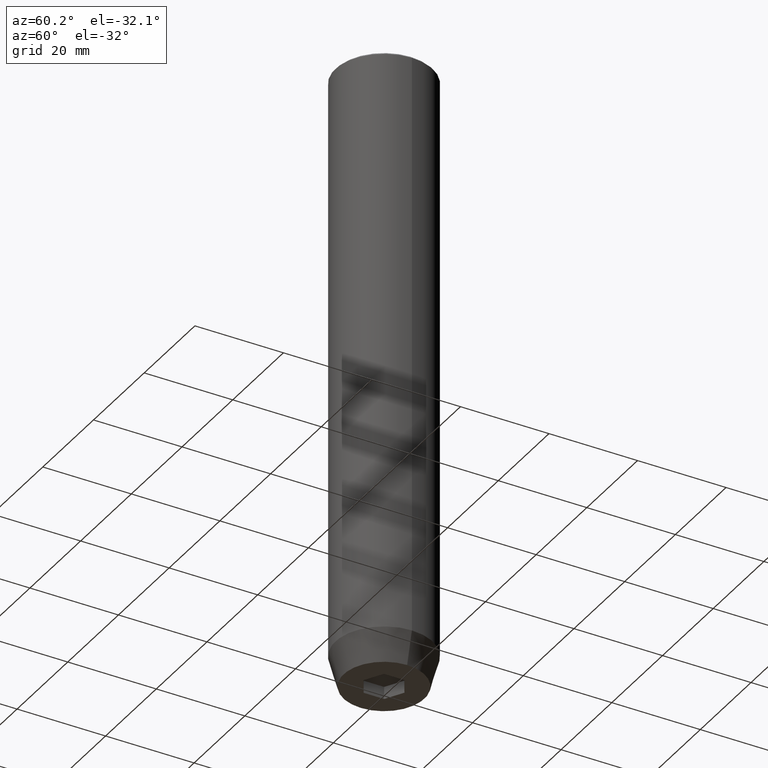
[diagram: clean part render]
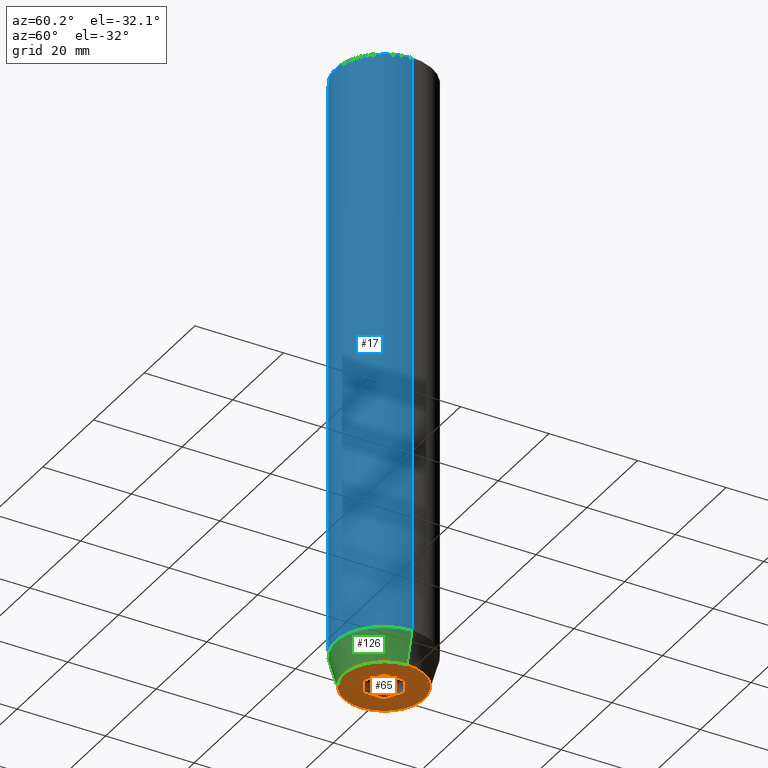
[diagram: same view with three faces highlighted in distinct colors, each labeled with its STEP entity id]
A machine part, auxiliary view with three faces highlighted in distinct colors.
Their STEP definitions:

[orange] entity #65 — the highlighted planar face has unit normal (0, 0, -1).
#5 = DIRECTION ( 'NONE',  ( -0.000000000000000000, -0.000000000000000000, 1.000000000000000000 ) ) ;
#7 = LINE ( 'NONE', #325, #34 ) ;
#12 = CARTESIAN_POINT ( 'NONE',  ( -4.000000000000000000, 2.309401076758503368, -140.0000000000000000 ) ) ;
#34 = VECTOR ( 'NONE', #508, 1000.000000000000000 ) ;
#36 = CARTESIAN_POINT ( 'NONE',  ( 4.336808689942017736E-16, -4.618802153517006737, -140.0000000000000000 ) ) ;
#65 = ADVANCED_FACE ( 'NONE', ( #344, #353 ), #536, .T. ) ;
#72 = AXIS2_PLACEMENT_3D ( 'NONE', #144, #525, #160 ) ;
#74 = VERTEX_POINT ( 'NONE', #394 ) ;
#80 = EDGE_CURVE ( 'NONE', #485, #447, #339, .T. ) ;
#98 = CARTESIAN_POINT ( 'NONE',  ( -9.124355652982133691, 1.232261386766375507E-15, -140.0000000000000000 ) ) ;
#108 = CARTESIAN_POINT ( 'NONE',  ( -2.000000000000000000, 3.464101615137754830, -140.0000000000000000 ) ) ;
#122 = EDGE_LOOP ( 'NONE', ( #214, #391 ) ) ;
#136 = CARTESIAN_POINT ( 'NONE',  ( 2.168404344971008868E-16, 4.618802153517006737, -140.0000000000000000 ) ) ;
#144 = CARTESIAN_POINT ( 'NONE',  ( 0.000000000000000000, 9.124355652982133691, -140.0000000000000000 ) ) ;
#160 = DIRECTION ( 'NONE',  ( -1.000000000000000000, 0.000000000000000000, -0.000000000000000000 ) ) ;
#163 = VECTOR ( 'NONE', #468, 1000.000000000000000 ) ;
#167 = ORIENTED_EDGE ( 'NONE', *, *, #307, .F. ) ;
#170 = AXIS2_PLACEMENT_3D ( 'NONE', #358, #542, #498 ) ;
#184 = CARTESIAN_POINT ( 'NONE',  ( -2.000000000000000888, -3.464101615137754386, -140.0000000000000000 ) ) ;
#186 = EDGE_CURVE ( 'NONE', #447, #296, #337, .T. ) ;
#193 = DIRECTION ( 'NONE',  ( 0.8660254037844385966, -0.5000000000000001110, 0.000000000000000000 ) ) ;
#204 = CIRCLE ( 'NONE', #170, 9.124355652982133691 ) ;
#211 = ORIENTED_EDGE ( 'NONE', *, *, #186, .F. ) ;
#214 = ORIENTED_EDGE ( 'NONE', *, *, #327, .F. ) ;
#217 = ORIENTED_EDGE ( 'NONE', *, *, #555, .F. ) ;
#221 = VECTOR ( 'NONE', #576, 999.9999999999998863 ) ;
#226 = DIRECTION ( 'NONE',  ( 1.000000000000000000, 0.000000000000000000, 0.000000000000000000 ) ) ;
#230 = CARTESIAN_POINT ( 'NONE',  ( -4.000000000000000000, -2.309401076758503368, -140.0000000000000000 ) ) ;
#264 = LINE ( 'NONE', #184, #560 ) ;
#270 = CARTESIAN_POINT ( 'NONE',  ( 4.000000000000000000, 2.309401076758503368, -140.0000000000000000 ) ) ;
#276 = LINE ( 'NONE', #423, #491 ) ;
#288 = EDGE_CURVE ( 'NONE', #74, #354, #276, .T. ) ;
#291 = VERTEX_POINT ( 'NONE', #230 ) ;
#296 = VERTEX_POINT ( 'NONE', #270 ) ;
#307 = EDGE_CURVE ( 'NONE', #354, #291, #264, .T. ) ;
#323 = DIRECTION ( 'NONE',  ( -0.8660254037844384856, -0.5000000000000002220, 0.000000000000000000 ) ) ;
#325 = CARTESIAN_POINT ( 'NONE',  ( -4.000000000000000000, 0.000000000000000000, -140.0000000000000000 ) ) ;
#327 = EDGE_CURVE ( 'NONE', #539, #489, #524, .T. ) ;
#337 = LINE ( 'NONE', #523, #553 ) ;
#339 = LINE ( 'NONE', #108, #221 ) ;
#344 = FACE_BOUND ( 'NONE', #585, .T. ) ;
#353 = FACE_OUTER_BOUND ( 'NONE', #122, .T. ) ;
#354 = VERTEX_POINT ( 'NONE', #36 ) ;
#357 = ORIENTED_EDGE ( 'NONE', *, *, #467, .F. ) ;
#358 = CARTESIAN_POINT ( 'NONE',  ( 0.000000000000000000, 0.000000000000000000, -140.0000000000000000 ) ) ;
#372 = LINE ( 'NONE', #378, #163 ) ;
#373 = EDGE_CURVE ( 'NONE', #489, #539, #204, .T. ) ;
#374 = ORIENTED_EDGE ( 'NONE', *, *, #288, .F. ) ;
#378 = CARTESIAN_POINT ( 'NONE',  ( 4.000000000000000000, 0.000000000000000000, -140.0000000000000000 ) ) ;
#391 = ORIENTED_EDGE ( 'NONE', *, *, #373, .F. ) ;
#394 = CARTESIAN_POINT ( 'NONE',  ( 4.000000000000000000, -2.309401076758502480, -140.0000000000000000 ) ) ;
#423 = CARTESIAN_POINT ( 'NONE',  ( 2.000000000000000888, -3.464101615137754386, -140.0000000000000000 ) ) ;
#447 = VERTEX_POINT ( 'NONE', #136 ) ;
#467 = EDGE_CURVE ( 'NONE', #296, #74, #372, .T. ) ;
#468 = DIRECTION ( 'NONE',  ( 0.000000000000000000, -1.000000000000000000, 0.000000000000000000 ) ) ;
#470 = CARTESIAN_POINT ( 'NONE',  ( 0.000000000000000000, 0.000000000000000000, -140.0000000000000000 ) ) ;
#485 = VERTEX_POINT ( 'NONE', #12 ) ;
#489 = VERTEX_POINT ( 'NONE', #98 ) ;
#491 = VECTOR ( 'NONE', #323, 1000.000000000000114 ) ;
#498 = DIRECTION ( 'NONE',  ( 1.000000000000000000, 0.000000000000000000, 0.000000000000000000 ) ) ;
#502 = ORIENTED_EDGE ( 'NONE', *, *, #80, .F. ) ;
#504 = CARTESIAN_POINT ( 'NONE',  ( 9.124355652982133691, 0.000000000000000000, -140.0000000000000000 ) ) ;
#508 = DIRECTION ( 'NONE',  ( 0.000000000000000000, 1.000000000000000000, 0.000000000000000000 ) ) ;
#515 = DIRECTION ( 'NONE',  ( -0.8660254037844384856, 0.5000000000000002220, 0.000000000000000000 ) ) ;
#516 = AXIS2_PLACEMENT_3D ( 'NONE', #470, #5, #226 ) ;
#523 = CARTESIAN_POINT ( 'NONE',  ( 2.000000000000000444, 3.464101615137754386, -140.0000000000000000 ) ) ;
#524 = CIRCLE ( 'NONE', #516, 9.124355652982133691 ) ;
#525 = DIRECTION ( 'NONE',  ( 0.000000000000000000, 0.000000000000000000, -1.000000000000000000 ) ) ;
#536 = PLANE ( 'NONE',  #72 ) ;
#539 = VERTEX_POINT ( 'NONE', #504 ) ;
#542 = DIRECTION ( 'NONE',  ( -0.000000000000000000, -0.000000000000000000, 1.000000000000000000 ) ) ;
#553 = VECTOR ( 'NONE', #193, 1000.000000000000000 ) ;
#555 = EDGE_CURVE ( 'NONE', #291, #485, #7, .T. ) ;
#560 = VECTOR ( 'NONE', #515, 1000.000000000000114 ) ;
#576 = DIRECTION ( 'NONE',  ( 0.8660254037844387076, 0.5000000000000001110, 0.000000000000000000 ) ) ;
#585 = EDGE_LOOP ( 'NONE', ( #502, #217, #167, #374, #357, #211 ) ) ;

[blue] entity #17 — the highlighted cylindrical surface (partial cylindrical patch) has radius 11 mm, axis along (-0, -0, 1).
#2 = CARTESIAN_POINT ( 'NONE',  ( 11.00000000000000000, 0.000000000000000000, -0.5000000000000004441 ) ) ;
#9 = ORIENTED_EDGE ( 'NONE', *, *, #87, .F. ) ;
#14 = VERTEX_POINT ( 'NONE', #2 ) ;
#17 = ADVANCED_FACE ( 'NONE', ( #225 ), #418, .T. ) ;
#29 = ORIENTED_EDGE ( 'NONE', *, *, #260, .T. ) ;
#32 = AXIS2_PLACEMENT_3D ( 'NONE', #90, #236, #429 ) ;
#38 = EDGE_CURVE ( 'NONE', #162, #14, #412, .T. ) ;
#79 = AXIS2_PLACEMENT_3D ( 'NONE', #500, #406, #258 ) ;
#87 = EDGE_CURVE ( 'NONE', #497, #271, #343, .T. ) ;
#90 = CARTESIAN_POINT ( 'NONE',  ( 0.000000000000000000, 0.000000000000000000, -133.0000000000000000 ) ) ;
#111 = DIRECTION ( 'NONE',  ( -0.000000000000000000, -0.000000000000000000, 1.000000000000000000 ) ) ;
#147 = CARTESIAN_POINT ( 'NONE',  ( 11.00000000000000000, 0.000000000000000000, -133.0000000000000000 ) ) ;
#159 = CARTESIAN_POINT ( 'NONE',  ( -11.00000000000000000, 1.347111479062088405E-15, -133.0000000000000000 ) ) ;
#162 = VERTEX_POINT ( 'NONE', #147 ) ;
#172 = DIRECTION ( 'NONE',  ( -0.000000000000000000, -0.000000000000000000, 1.000000000000000000 ) ) ;
#177 = CARTESIAN_POINT ( 'NONE',  ( 0.000000000000000000, 0.000000000000000000, -0.5000000000000004441 ) ) ;
#185 = ORIENTED_EDGE ( 'NONE', *, *, #479, .T. ) ;
#194 = VECTOR ( 'NONE', #111, 1000.000000000000000 ) ;
#224 = CARTESIAN_POINT ( 'NONE',  ( -11.00000000000000000, 1.347111479062088405E-15, -0.5000000000000004441 ) ) ;
#225 = FACE_OUTER_BOUND ( 'NONE', #254, .T. ) ;
#236 = DIRECTION ( 'NONE',  ( -0.000000000000000000, -0.000000000000000000, 1.000000000000000000 ) ) ;
#252 = ORIENTED_EDGE ( 'NONE', *, *, #38, .T. ) ;
#254 = EDGE_LOOP ( 'NONE', ( #9, #29, #252, #185 ) ) ;
#258 = DIRECTION ( 'NONE',  ( 1.000000000000000000, 0.000000000000000000, 0.000000000000000000 ) ) ;
#260 = EDGE_CURVE ( 'NONE', #497, #162, #450, .T. ) ;
#271 = VERTEX_POINT ( 'NONE', #224 ) ;
#324 = DIRECTION ( 'NONE',  ( 1.000000000000000000, 0.000000000000000000, 0.000000000000000000 ) ) ;
#343 = LINE ( 'NONE', #385, #194 ) ;
#348 = VECTOR ( 'NONE', #172, 1000.000000000000000 ) ;
#385 = CARTESIAN_POINT ( 'NONE',  ( -11.00000000000000000, 1.347111479062088405E-15, 0.000000000000000000 ) ) ;
#406 = DIRECTION ( 'NONE',  ( -0.000000000000000000, -0.000000000000000000, 1.000000000000000000 ) ) ;
#412 = LINE ( 'NONE', #586, #348 ) ;
#418 = CYLINDRICAL_SURFACE ( 'NONE', #79, 11.00000000000000000 ) ;
#424 = DIRECTION ( 'NONE',  ( 0.000000000000000000, 0.000000000000000000, -1.000000000000000000 ) ) ;
#429 = DIRECTION ( 'NONE',  ( 1.000000000000000000, 0.000000000000000000, 0.000000000000000000 ) ) ;
#450 = CIRCLE ( 'NONE', #32, 11.00000000000000000 ) ;
#479 = EDGE_CURVE ( 'NONE', #14, #271, #509, .T. ) ;
#497 = VERTEX_POINT ( 'NONE', #159 ) ;
#500 = CARTESIAN_POINT ( 'NONE',  ( 0.000000000000000000, 0.000000000000000000, 0.000000000000000000 ) ) ;
#509 = CIRCLE ( 'NONE', #528, 11.00000000000000000 ) ;
#528 = AXIS2_PLACEMENT_3D ( 'NONE', #177, #424, #324 ) ;
#586 = CARTESIAN_POINT ( 'NONE',  ( 11.00000000000000000, 0.000000000000000000, 0.000000000000000000 ) ) ;

[green] entity #126 — the highlighted conical surface has half-angle 15 deg.
#15 = CARTESIAN_POINT ( 'NONE',  ( 11.00000000000000000, 0.000000000000000000, -133.0000000000000000 ) ) ;
#32 = AXIS2_PLACEMENT_3D ( 'NONE', #90, #236, #429 ) ;
#44 = EDGE_CURVE ( 'NONE', #539, #162, #471, .T. ) ;
#52 = AXIS2_PLACEMENT_3D ( 'NONE', #169, #534, #443 ) ;
#60 = CARTESIAN_POINT ( 'NONE',  ( -11.00000000000000000, 1.347111479062088405E-15, -133.0000000000000000 ) ) ;
#90 = CARTESIAN_POINT ( 'NONE',  ( 0.000000000000000000, 0.000000000000000000, -133.0000000000000000 ) ) ;
#98 = CARTESIAN_POINT ( 'NONE',  ( -9.124355652982133691, 1.232261386766375507E-15, -140.0000000000000000 ) ) ;
#103 = ORIENTED_EDGE ( 'NONE', *, *, #44, .T. ) ;
#126 = ADVANCED_FACE ( 'NONE', ( #356 ), #263, .T. ) ;
#147 = CARTESIAN_POINT ( 'NONE',  ( 11.00000000000000000, 0.000000000000000000, -133.0000000000000000 ) ) ;
#159 = CARTESIAN_POINT ( 'NONE',  ( -11.00000000000000000, 1.347111479062088405E-15, -133.0000000000000000 ) ) ;
#162 = VERTEX_POINT ( 'NONE', #147 ) ;
#169 = CARTESIAN_POINT ( 'NONE',  ( 0.000000000000000000, 0.000000000000000000, -133.0000000000000000 ) ) ;
#170 = AXIS2_PLACEMENT_3D ( 'NONE', #358, #542, #498 ) ;
#191 = DIRECTION ( 'NONE',  ( 0.2588190451025213501, 0.000000000000000000, 0.9659258262890680902 ) ) ;
#204 = CIRCLE ( 'NONE', #170, 9.124355652982133691 ) ;
#236 = DIRECTION ( 'NONE',  ( -0.000000000000000000, -0.000000000000000000, 1.000000000000000000 ) ) ;
#237 = DIRECTION ( 'NONE',  ( -0.2588190451025213501, 3.169619151431772337E-17, 0.9659258262890680902 ) ) ;
#238 = EDGE_CURVE ( 'NONE', #489, #497, #475, .T. ) ;
#260 = EDGE_CURVE ( 'NONE', #497, #162, #450, .T. ) ;
#263 = CONICAL_SURFACE ( 'NONE', #52, 11.00000000000000000, 0.2617993877991500740 ) ;
#303 = EDGE_LOOP ( 'NONE', ( #541, #414, #103, #546 ) ) ;
#356 = FACE_OUTER_BOUND ( 'NONE', #303, .T. ) ;
#358 = CARTESIAN_POINT ( 'NONE',  ( 0.000000000000000000, 0.000000000000000000, -140.0000000000000000 ) ) ;
#373 = EDGE_CURVE ( 'NONE', #489, #539, #204, .T. ) ;
#410 = VECTOR ( 'NONE', #191, 1000.000000000000000 ) ;
#414 = ORIENTED_EDGE ( 'NONE', *, *, #373, .T. ) ;
#429 = DIRECTION ( 'NONE',  ( 1.000000000000000000, 0.000000000000000000, 0.000000000000000000 ) ) ;
#443 = DIRECTION ( 'NONE',  ( 1.000000000000000000, 0.000000000000000000, 0.000000000000000000 ) ) ;
#450 = CIRCLE ( 'NONE', #32, 11.00000000000000000 ) ;
#471 = LINE ( 'NONE', #15, #410 ) ;
#475 = LINE ( 'NONE', #60, #506 ) ;
#489 = VERTEX_POINT ( 'NONE', #98 ) ;
#497 = VERTEX_POINT ( 'NONE', #159 ) ;
#498 = DIRECTION ( 'NONE',  ( 1.000000000000000000, 0.000000000000000000, 0.000000000000000000 ) ) ;
#504 = CARTESIAN_POINT ( 'NONE',  ( 9.124355652982133691, 0.000000000000000000, -140.0000000000000000 ) ) ;
#506 = VECTOR ( 'NONE', #237, 1000.000000000000000 ) ;
#534 = DIRECTION ( 'NONE',  ( -0.000000000000000000, -0.000000000000000000, 1.000000000000000000 ) ) ;
#539 = VERTEX_POINT ( 'NONE', #504 ) ;
#541 = ORIENTED_EDGE ( 'NONE', *, *, #238, .F. ) ;
#542 = DIRECTION ( 'NONE',  ( -0.000000000000000000, -0.000000000000000000, 1.000000000000000000 ) ) ;
#546 = ORIENTED_EDGE ( 'NONE', *, *, #260, .F. ) ;